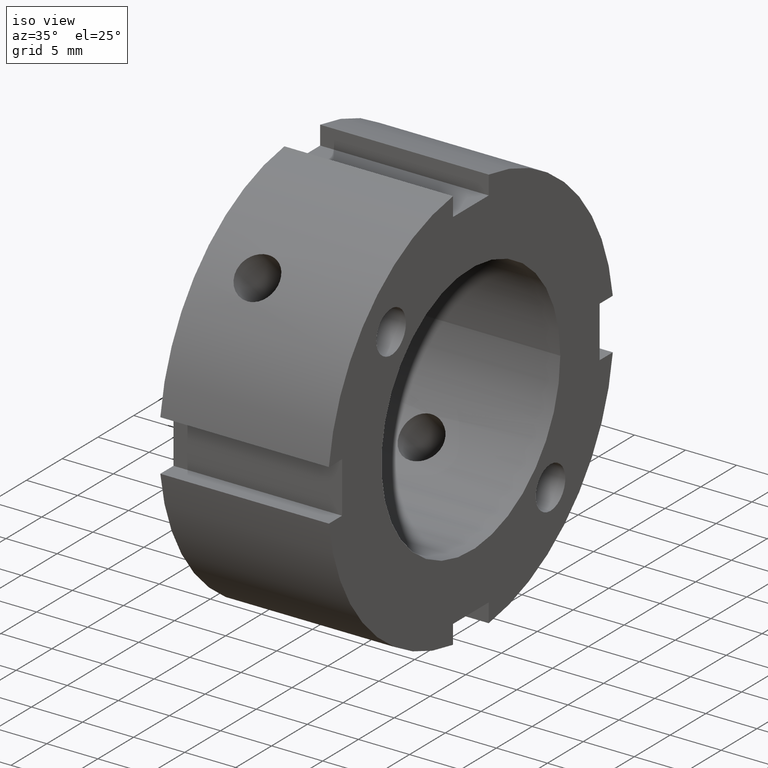
[diagram: clean part render]
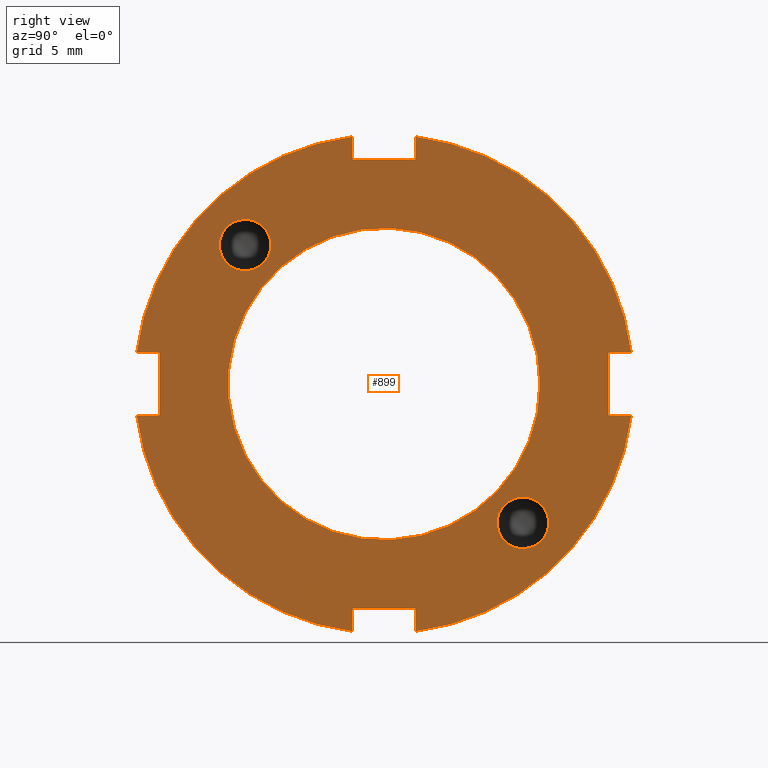
[diagram: tour spotlight — one face highlighted and labeled with its STEP entity id]
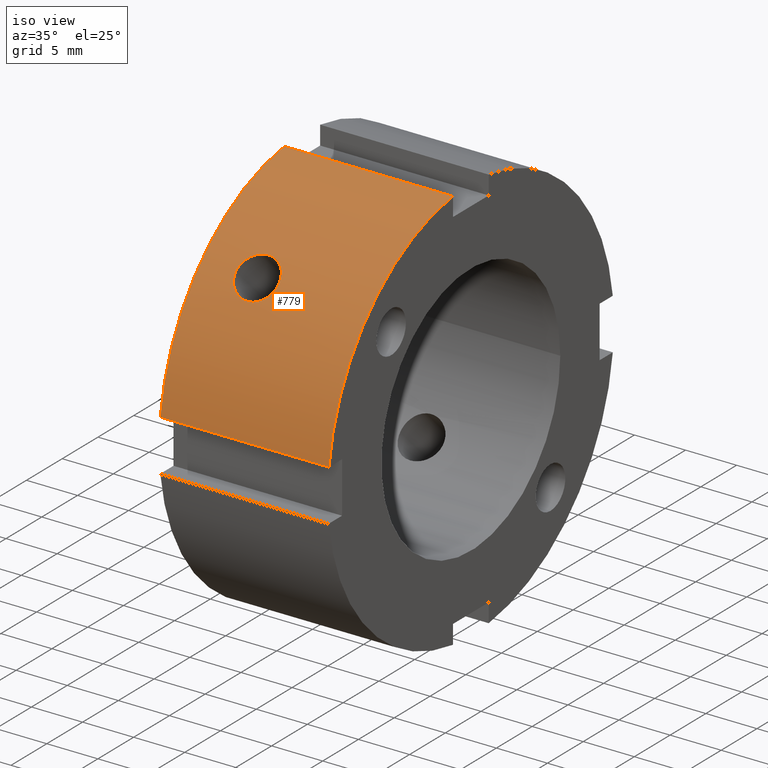
[diagram: tour spotlight — one face highlighted and labeled with its STEP entity id]
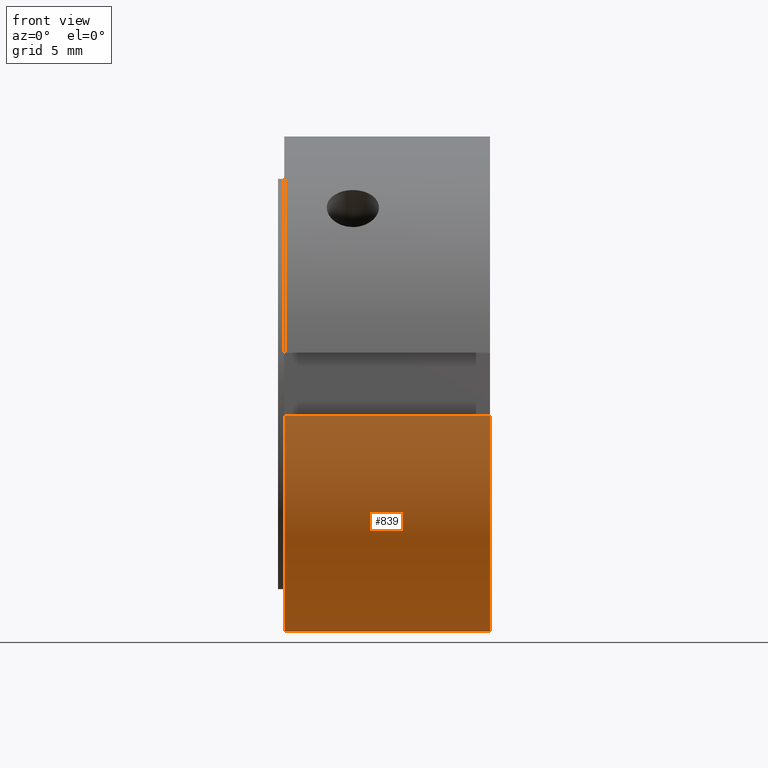
[diagram: tour spotlight — one face highlighted and labeled with its STEP entity id]
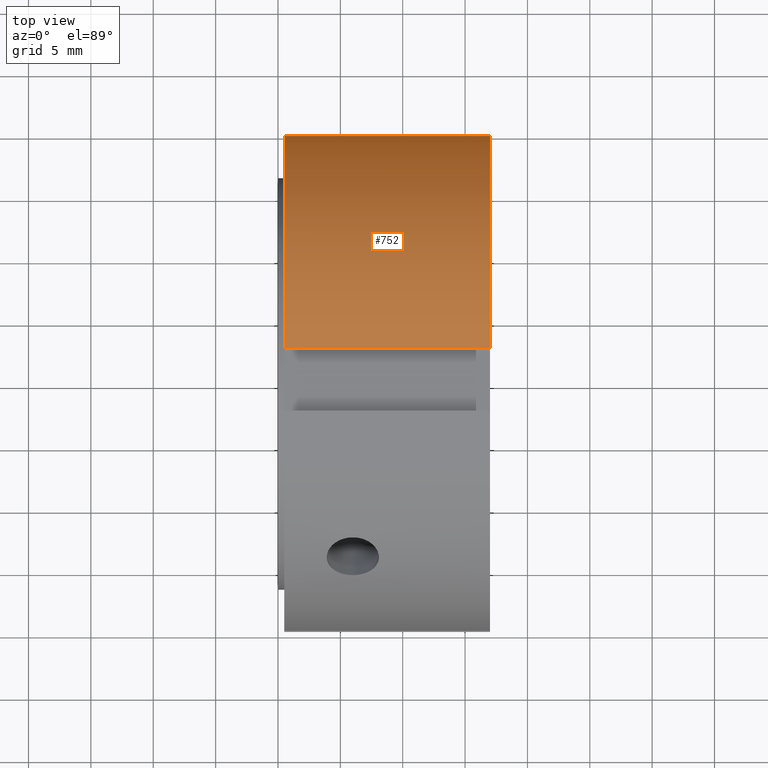
[diagram: tour spotlight — one face highlighted and labeled with its STEP entity id]
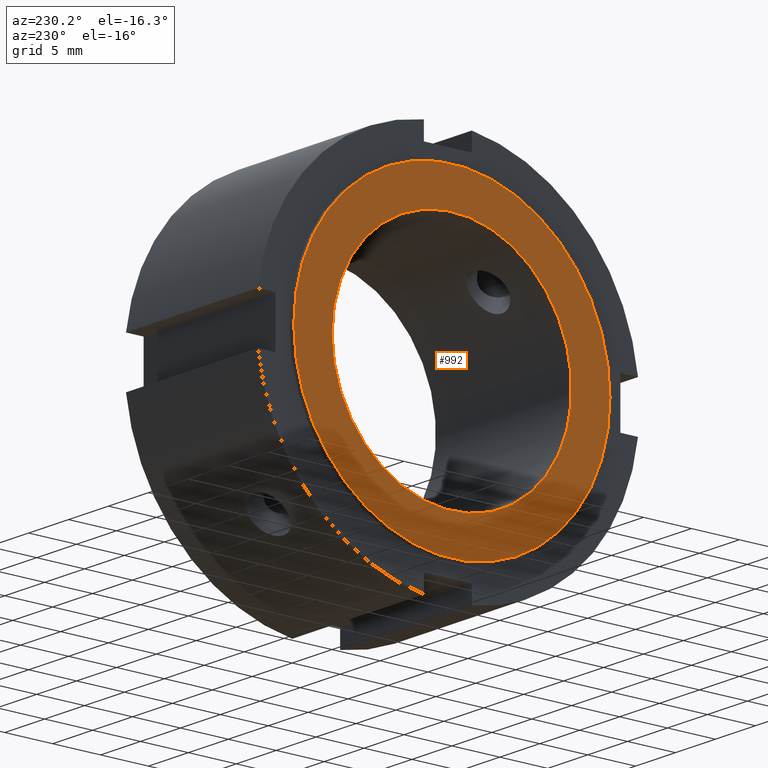
[diagram: tour spotlight — one face highlighted and labeled with its STEP entity id]
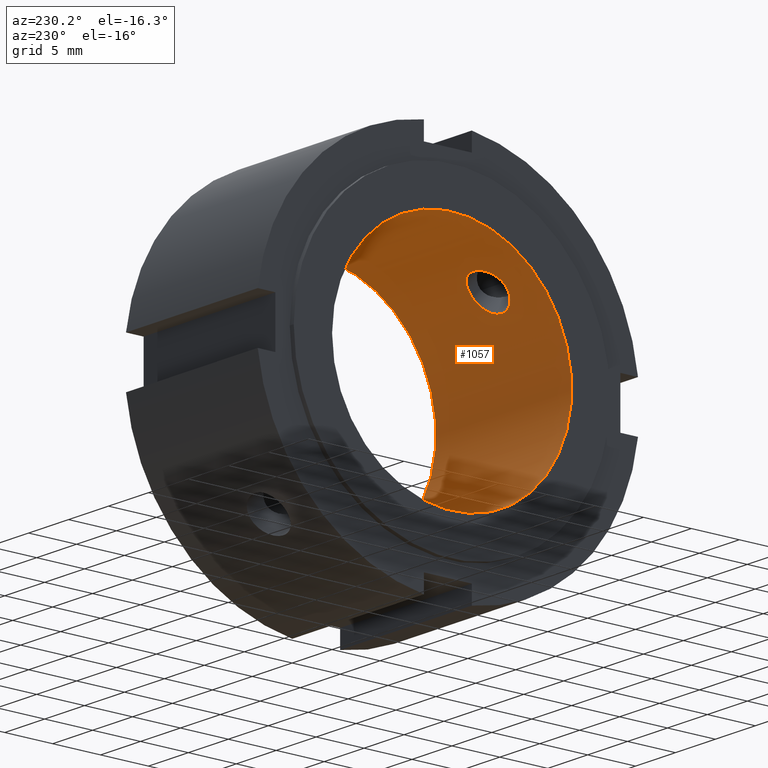
[diagram: tour spotlight — one face highlighted and labeled with its STEP entity id]
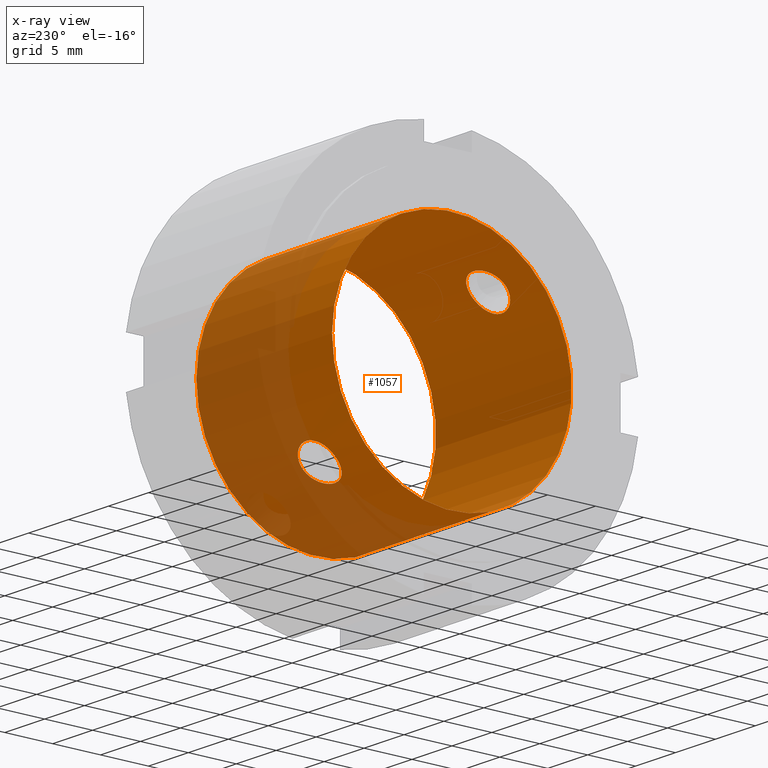
[diagram: x-ray of the same camera — body ghosted, this tour face saturated]
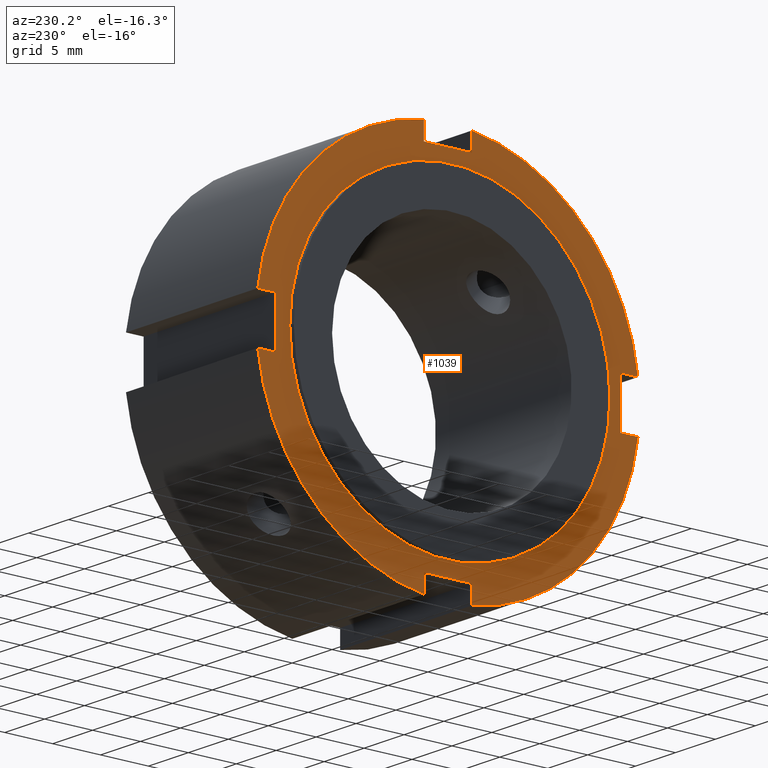
[diagram: tour spotlight — one face highlighted and labeled with its STEP entity id]
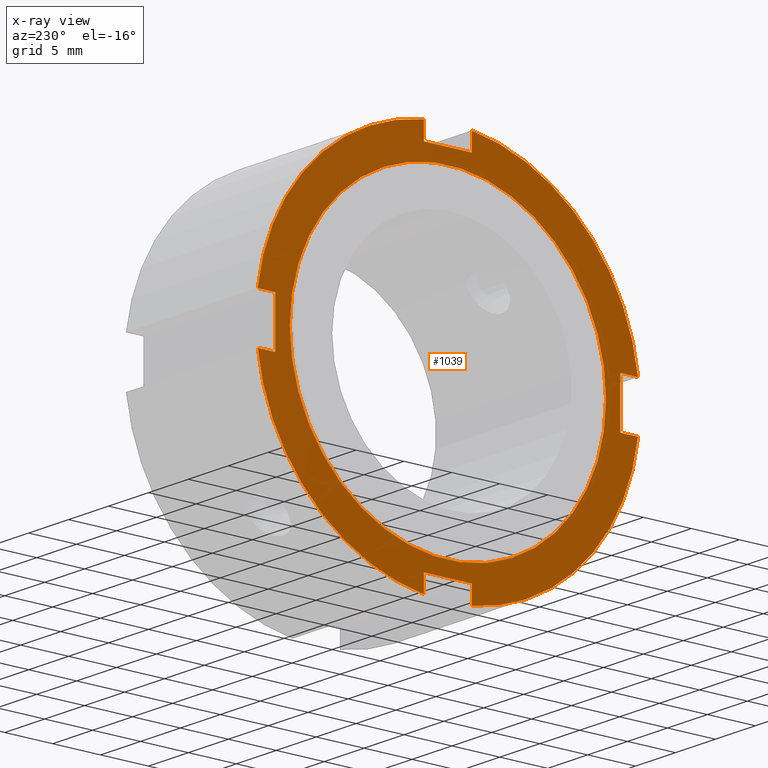
[diagram: x-ray of the same camera — body ghosted, this tour face saturated]
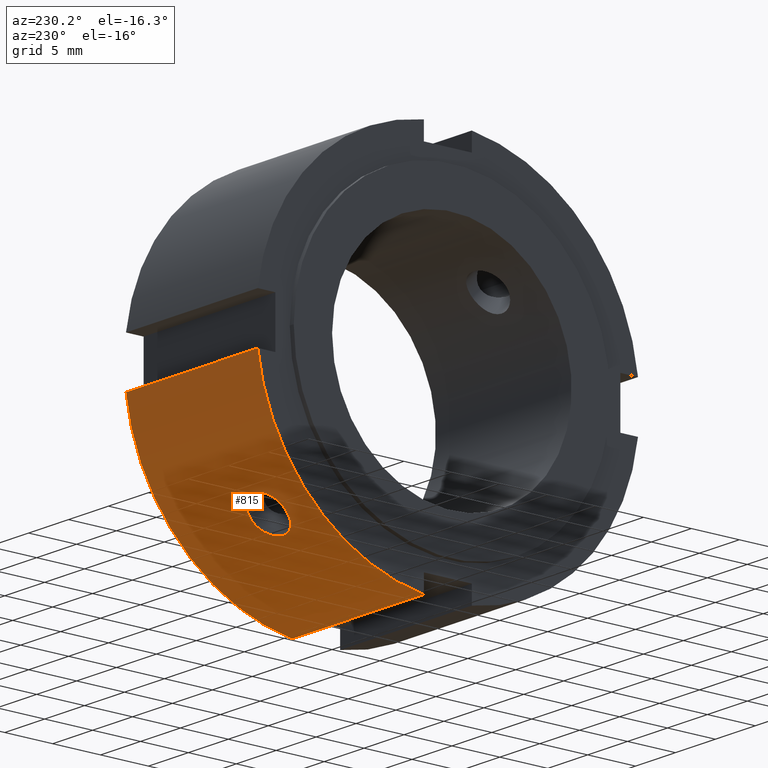
[diagram: tour spotlight — one face highlighted and labeled with its STEP entity id]
A machine part: a face-by-face anatomy tour. The part has 25 B-rep faces; the first image is the clean iso view, then the 8 largest visible faces are spotlighted one at a time (largest first), each with its STEP entity span.

Face 1 — right view, entity #899. In plain terms, the highlighted planar face has unit normal (1, 0, 0).
Definition (entity closure, byte-faithful):
#73=CARTESIAN_POINT('',(16.999999999999996,-13.203931803688121,11.13693180368813));
#74=VERTEX_POINT('',#73);
#75=CARTESIAN_POINT('',(16.999999999999996,-11.136931803688119,11.13693180368813));
#76=DIRECTION('',(-1.0,0.0,0.0));
#77=DIRECTION('',(0.0,-1.0,0.0));
#78=AXIS2_PLACEMENT_3D('',#75,#76,#77);
#79=CIRCLE('',#78,2.067);
#80=EDGE_CURVE('',#74,#74,#79,.T.);
#311=CARTESIAN_POINT('',(16.999999999999996,11.136931803688128,-13.203931803688123));
#312=VERTEX_POINT('',#311);
#313=CARTESIAN_POINT('',(16.999999999999996,11.136931803688128,-11.136931803688121));
#314=DIRECTION('',(-1.0,0.0,0.0));
#315=DIRECTION('',(0.0,0.0,-1.0));
#316=AXIS2_PLACEMENT_3D('',#313,#314,#315);
#317=CIRCLE('',#316,2.067);
#318=EDGE_CURVE('',#312,#312,#317,.T.);
#429=CARTESIAN_POINT('',(16.999999999999996,-2.500000000000003,-18.0));
#430=VERTEX_POINT('',#429);
#437=CARTESIAN_POINT('',(16.999999999999996,-2.500000000000002,-19.843134832984425));
#438=VERTEX_POINT('',#437);
#439=CARTESIAN_POINT('',(16.999999999999996,-2.500000000000003,-19.843134832984425));
#440=DIRECTION('',(0.0,0.0,1.0));
#441=VECTOR('',#440,1.843134832984426);
#442=LINE('',#439,#441);
#443=EDGE_CURVE('',#438,#430,#442,.T.);
#469=CARTESIAN_POINT('',(16.999999999999996,2.499999999999995,-19.843134832984425));
#470=VERTEX_POINT('',#469);
#477=CARTESIAN_POINT('',(16.999999999999996,2.499999999999996,-18.0));
#478=VERTEX_POINT('',#477);
#479=CARTESIAN_POINT('',(16.999999999999996,2.499999999999996,-18.0));
#480=DIRECTION('',(0.0,0.0,-1.0));
#481=VECTOR('',#480,1.843134832984426);
#482=LINE('',#479,#481);
#483=EDGE_CURVE('',#478,#470,#482,.T.);
#506=CARTESIAN_POINT('',(16.999999999999996,-2.500000000000004,-17.999999999999996));
#507=DIRECTION('',(0.0,1.0,0.0));
#508=VECTOR('',#507,5.0);
#509=LINE('',#506,#508);
#510=EDGE_CURVE('',#430,#478,#509,.T.);
#531=CARTESIAN_POINT('',(16.999999999999996,-18.0,2.500000000000002));
#532=VERTEX_POINT('',#531);
#539=CARTESIAN_POINT('',(16.999999999999996,-19.843134832984425,2.500000000000001));
#540=VERTEX_POINT('',#539);
#541=CARTESIAN_POINT('',(16.999999999999996,-19.843134832984425,2.500000000000002));
#542=DIRECTION('',(0.0,1.0,0.0));
#543=VECTOR('',#542,1.843134832984426);
#544=LINE('',#541,#543);
#545=EDGE_CURVE('',#540,#532,#544,.T.);
#571=CARTESIAN_POINT('',(16.999999999999996,-19.843134832984425,-2.499999999999996));
#572=VERTEX_POINT('',#571);
#579=CARTESIAN_POINT('',(16.999999999999996,-18.0,-2.499999999999997));
#580=VERTEX_POINT('',#579);
#581=CARTESIAN_POINT('',(16.999999999999996,-18.0,-2.499999999999998));
#582=DIRECTION('',(0.0,-1.0,0.0));
#583=VECTOR('',#582,1.843134832984426);
#584=LINE('',#581,#583);
#585=EDGE_CURVE('',#580,#572,#584,.T.);
#608=CARTESIAN_POINT('',(16.999999999999996,-18.0,2.500000000000002));
#609=DIRECTION('',(0.0,0.0,-1.0));
#610=VECTOR('',#609,4.999999999999998);
#611=LINE('',#608,#610);
#612=EDGE_CURVE('',#532,#580,#611,.T.);
#633=CARTESIAN_POINT('',(16.999999999999996,2.5,18.0));
#634=VERTEX_POINT('',#633);
#641=CARTESIAN_POINT('',(16.999999999999996,2.5,19.843134832984425));
#642=VERTEX_POINT('',#641);
#643=CARTESIAN_POINT('',(16.999999999999996,2.5,19.843134832984425));
#644=DIRECTION('',(0.0,0.0,-1.0));
#645=VECTOR('',#644,1.843134832984426);
#646=LINE('',#643,#645);
#647=EDGE_CURVE('',#642,#634,#646,.T.);
#673=CARTESIAN_POINT('',(16.999999999999996,-2.499999999999998,19.843134832984425));
#674=VERTEX_POINT('',#673);
#681=CARTESIAN_POINT('',(16.999999999999996,-2.499999999999998,18.0));
#682=VERTEX_POINT('',#681);
#683=CARTESIAN_POINT('',(16.999999999999996,-2.499999999999998,18.0));
#684=DIRECTION('',(0.0,0.0,1.0));
#685=VECTOR('',#684,1.843134832984426);
#686=LINE('',#683,#685);
#687=EDGE_CURVE('',#682,#674,#686,.T.);
#710=CARTESIAN_POINT('',(16.999999999999996,2.5,18.0));
#711=DIRECTION('',(0.0,-1.0,0.0));
#712=VECTOR('',#711,4.999999999999999);
#713=LINE('',#710,#712);
#714=EDGE_CURVE('',#634,#682,#713,.T.);
#726=CARTESIAN_POINT('',(16.999999999999996,19.843134832984425,2.499999999999999));
#727=VERTEX_POINT('',#726);
#728=CARTESIAN_POINT('',(16.999999999999996,0.0,0.0));
#729=DIRECTION('',(1.0,0.0,0.0));
#730=DIRECTION('',(0.0,1.0,0.0));
#731=AXIS2_PLACEMENT_3D('',#728,#729,#730);
#732=CIRCLE('',#731,19.999999999999996);
#733=EDGE_CURVE('',#727,#642,#732,.T.);
#759=CARTESIAN_POINT('',(16.999999999999996,0.0,0.0));
#760=DIRECTION('',(1.0,0.0,0.0));
#761=DIRECTION('',(0.0,1.0,0.0));
#762=AXIS2_PLACEMENT_3D('',#759,#760,#761);
#763=CIRCLE('',#762,19.999999999999996);
#764=EDGE_CURVE('',#674,#540,#763,.T.);
#795=CARTESIAN_POINT('',(16.999999999999996,19.843134832984425,-2.499999999999999));
#796=VERTEX_POINT('',#795);
#803=CARTESIAN_POINT('',(16.999999999999996,0.0,0.0));
#804=DIRECTION('',(1.0,0.0,0.0));
#805=DIRECTION('',(0.0,1.0,0.0));
#806=AXIS2_PLACEMENT_3D('',#803,#804,#805);
#807=CIRCLE('',#806,19.999999999999996);
#808=EDGE_CURVE('',#470,#796,#807,.T.);
#822=CARTESIAN_POINT('',(16.999999999999996,0.0,0.0));
#823=DIRECTION('',(1.0,0.0,0.0));
#824=DIRECTION('',(0.0,1.0,0.0));
#825=AXIS2_PLACEMENT_3D('',#822,#823,#824);
#826=CIRCLE('',#825,19.999999999999996);
#827=EDGE_CURVE('',#572,#438,#826,.T.);
#840=CARTESIAN_POINT('',(16.999999999999996,16.25,0.0));
#841=DIRECTION('',(1.0,0.0,0.0));
#842=DIRECTION('',(0.0,0.0,-1.0));
#843=AXIS2_PLACEMENT_3D('',#840,#841,#842);
#844=PLANE('',#843);
#845=ORIENTED_EDGE('',*,*,#443,.T.);
#846=ORIENTED_EDGE('',*,*,#510,.T.);
#847=ORIENTED_EDGE('',*,*,#483,.T.);
#848=ORIENTED_EDGE('',*,*,#808,.T.);
#849=CARTESIAN_POINT('',(16.999999999999996,18.0,-2.5));
#850=VERTEX_POINT('',#849);
#851=CARTESIAN_POINT('',(16.999999999999996,19.843134832984425,-2.499999999999999));
#852=DIRECTION('',(0.0,-1.0,0.0));
#853=VECTOR('',#852,1.843134832984426);
#854=LINE('',#851,#853);
#855=EDGE_CURVE('',#796,#850,#854,.T.);
#856=ORIENTED_EDGE('',*,*,#855,.T.);
#857=CARTESIAN_POINT('',(16.999999999999996,18.0,2.5));
#858=VERTEX_POINT('',#857);
#859=CARTESIAN_POINT('',(16.999999999999996,18.0,-2.499999999999999));
#860=DIRECTION('',(0.0,0.0,1.0));
#861=VECTOR('',#860,4.999999999999998);
#862=LINE('',#859,#861);
#863=EDGE_CURVE('',#850,#858,#862,.T.);
#864=ORIENTED_EDGE('',*,*,#863,.T.);
#865=CARTESIAN_POINT('',(16.999999999999996,18.0,2.5));
#866=DIRECTION('',(0.0,1.0,0.0));
#867=VECTOR('',#866,1.843134832984426);
#868=LINE('',#865,#867);
#869=EDGE_CURVE('',#858,#727,#868,.T.);
#870=ORIENTED_EDGE('',*,*,#869,.T.);
#871=ORIENTED_EDGE('',*,*,#733,.T.);
#872=ORIENTED_EDGE('',*,*,#647,.T.);
#873=ORIENTED_EDGE('',*,*,#714,.T.);
#874=ORIENTED_EDGE('',*,*,#687,.T.);
#875=ORIENTED_EDGE('',*,*,#764,.T.);
#876=ORIENTED_EDGE('',*,*,#545,.T.);
#877=ORIENTED_EDGE('',*,*,#612,.T.);
#878=ORIENTED_EDGE('',*,*,#585,.T.);
#879=ORIENTED_EDGE('',*,*,#827,.T.);
#880=EDGE_LOOP('',(#845,#846,#847,#848,#856,#864,#870,#871,#872,#873,#874,#875,#876,#877,#878,#879));
#881=FACE_OUTER_BOUND('',#880,.T.);
#882=ORIENTED_EDGE('',*,*,#80,.T.);
#883=EDGE_LOOP('',(#882));
#884=FACE_BOUND('',#883,.T.);
#885=ORIENTED_EDGE('',*,*,#318,.T.);
#886=EDGE_LOOP('',(#885));
#887=FACE_BOUND('',#886,.T.);
#888=CARTESIAN_POINT('',(16.999999999999996,12.5,0.0));
#889=VERTEX_POINT('',#888);
#890=CARTESIAN_POINT('',(16.999999999999996,0.0,0.0));
#891=DIRECTION('',(1.0,0.0,0.0));
#892=DIRECTION('',(0.0,1.0,0.0));
#893=AXIS2_PLACEMENT_3D('',#890,#891,#892);
#894=CIRCLE('',#893,12.5);
#895=EDGE_CURVE('',#889,#889,#894,.T.);
#896=ORIENTED_EDGE('',*,*,#895,.F.);
#897=EDGE_LOOP('',(#896));
#898=FACE_BOUND('',#897,.T.);
#899=ADVANCED_FACE('',(#881,#884,#887,#898),#844,.T.);

Face 2 — iso view, entity #779. In plain terms, the highlighted cylindrical surface (partial cylindrical patch) has radius 20 mm, axis along (1, 0, 0).
Definition (entity closure, byte-faithful):
#155=CARTESIAN_POINT('',(5.999999999999996,-15.548885275705118,12.57903679472162));
#156=VERTEX_POINT('',#155);
#157=CARTESIAN_POINT('',(5.999999999999996,-15.548885275705116,12.579036794721624));
#158=CARTESIAN_POINT('',(5.736109916406895,-15.548885275705116,12.579036794721624));
#159=CARTESIAN_POINT('',(5.45476406221831,-15.515661773209469,12.620453155101028));
#160=CARTESIAN_POINT('',(4.93742553178847,-15.378850830171311,12.786811376909208));
#161=CARTESIAN_POINT('',(4.701416181922334,-15.275055123636342,12.911529971040007));
#162=CARTESIAN_POINT('',(4.328736108781461,-15.031150372504074,13.194674433769757));
#163=CARTESIAN_POINT('',(4.167151494345116,-14.874702546907892,13.371994709189609));
#164=CARTESIAN_POINT('',(3.952778074131436,-14.52360405671482,13.752524988666654));
#165=CARTESIAN_POINT('',(3.899999999999996,-14.328733318571576,13.955537928890326));
#166=CARTESIAN_POINT('',(3.899999999999996,-13.955537928890319,14.32873331857158));
#167=CARTESIAN_POINT('',(3.952778074131437,-13.752524988666647,14.523604056714829));
#168=CARTESIAN_POINT('',(4.167151494345119,-13.371994709189599,14.874702546907901));
#169=CARTESIAN_POINT('',(4.32873610878146,-13.194674433769752,15.031150372504083));
#170=CARTESIAN_POINT('',(4.701416181922333,-12.91152997104,15.275055123636349));
#171=CARTESIAN_POINT('',(4.937425531788472,-12.786811376909203,15.378850830171316));
#172=CARTESIAN_POINT('',(5.454764062218312,-12.620453155101021,15.515661773209475));
#173=CARTESIAN_POINT('',(5.736109916406895,-12.579036794721617,15.548885275705125));
#174=CARTESIAN_POINT('',(6.263890083593098,-12.579036794721617,15.548885275705125));
#175=CARTESIAN_POINT('',(6.545235937781681,-12.620453155101021,15.515661773209475));
#176=CARTESIAN_POINT('',(7.06257446821152,-12.786811376909203,15.378850830171316));
#177=CARTESIAN_POINT('',(7.298583818077658,-12.91152997104,15.275055123636349));
#178=CARTESIAN_POINT('',(7.671263891218531,-13.194674433769752,15.031150372504083));
#179=CARTESIAN_POINT('',(7.832848505654874,-13.3719947091896,14.874702546907898));
#180=CARTESIAN_POINT('',(8.047221925868556,-13.752524988666648,14.523604056714827));
#181=CARTESIAN_POINT('',(8.099999999999996,-13.955537928890319,14.32873331857158));
#182=CARTESIAN_POINT('',(8.099999999999996,-14.328733318571574,13.955537928890326));
#183=CARTESIAN_POINT('',(8.047221925868556,-14.52360405671482,13.752524988666654));
#184=CARTESIAN_POINT('',(7.832848505654878,-14.874702546907891,13.371994709189611));
#185=CARTESIAN_POINT('',(7.671263891218531,-15.031150372504069,13.194674433769764));
#186=CARTESIAN_POINT('',(7.29858381807766,-15.275055123636339,12.911529971040014));
#187=CARTESIAN_POINT('',(7.062574468211525,-15.378850830171309,12.786811376909206));
#188=CARTESIAN_POINT('',(6.545235937781685,-15.515661773209468,12.620453155101025));
#189=CARTESIAN_POINT('',(6.263890083593098,-15.548885275705118,12.579036794721624));
#190=CARTESIAN_POINT('',(5.999999999999996,-15.548885275705118,12.579036794721624));
#191=B_SPLINE_CURVE_WITH_KNOTS('',3,(#157,#158,#159,#160,#161,#162,#163,#164,#165,#166,#167,#168,#169,#170,#171,#172,#173,#174,#175,#176,#177,#178,#179,#180,#181,#182,#183,#184,#185,#186,#187,#188,#189,#190),.UNSPECIFIED.,.T.,.U.,(4,2,2,2,2,2,2,2,2,2,2,2,2,2,2,2,4),(0.0,0.07916702507793,0.158334050155861,0.237500747381212,0.316667444606564,0.395834141831916,0.475000839057268,0.554167864135198,0.633334889213129,0.712501914291059,0.791668939368989,0.870835636594341,0.950002333819693,1.029169031045044,1.108335728270395,1.187502753348326,1.266669778426257),.UNSPECIFIED.);
#192=EDGE_CURVE('',#156,#156,#191,.T.);
#523=CARTESIAN_POINT('',(0.499999999999998,-19.843134832984425,2.500000000000001));
#524=VERTEX_POINT('',#523);
#539=CARTESIAN_POINT('',(16.999999999999996,-19.843134832984425,2.500000000000001));
#540=VERTEX_POINT('',#539);
#547=CARTESIAN_POINT('',(0.5,-19.843134832984425,2.500000000000002));
#548=DIRECTION('',(1.0,0.0,0.0));
#549=VECTOR('',#548,16.5);
#550=LINE('',#547,#549);
#551=EDGE_CURVE('',#524,#540,#550,.T.);
#663=CARTESIAN_POINT('',(0.499999999999998,-2.499999999999998,19.843134832984425));
#664=VERTEX_POINT('',#663);
#673=CARTESIAN_POINT('',(16.999999999999996,-2.499999999999998,19.843134832984425));
#674=VERTEX_POINT('',#673);
#675=CARTESIAN_POINT('',(17.0,-2.499999999999998,19.843134832984425));
#676=DIRECTION('',(-1.0,0.0,0.0));
#677=VECTOR('',#676,16.5);
#678=LINE('',#675,#677);
#679=EDGE_CURVE('',#674,#664,#678,.T.);
#753=CARTESIAN_POINT('',(8.749999999999996,0.0,0.0));
#754=DIRECTION('',(1.0,0.0,0.0));
#755=DIRECTION('',(0.0,1.0,0.0));
#756=AXIS2_PLACEMENT_3D('',#753,#754,#755);
#757=CYLINDRICAL_SURFACE('',#756,19.999999999999996);
#758=ORIENTED_EDGE('',*,*,#551,.T.);
#759=CARTESIAN_POINT('',(16.999999999999996,0.0,0.0));
#760=DIRECTION('',(1.0,0.0,0.0));
#761=DIRECTION('',(0.0,1.0,0.0));
#762=AXIS2_PLACEMENT_3D('',#759,#760,#761);
#763=CIRCLE('',#762,19.999999999999996);
#764=EDGE_CURVE('',#674,#540,#763,.T.);
#765=ORIENTED_EDGE('',*,*,#764,.F.);
#766=ORIENTED_EDGE('',*,*,#679,.T.);
#767=CARTESIAN_POINT('',(0.499999999999998,0.0,0.0));
#768=DIRECTION('',(1.0,0.0,0.0));
#769=DIRECTION('',(0.0,1.0,0.0));
#770=AXIS2_PLACEMENT_3D('',#767,#768,#769);
#771=CIRCLE('',#770,19.999999999999996);
#772=EDGE_CURVE('',#664,#524,#771,.T.);
#773=ORIENTED_EDGE('',*,*,#772,.T.);
#774=EDGE_LOOP('',(#758,#765,#766,#773));
#775=FACE_OUTER_BOUND('',#774,.T.);
#776=ORIENTED_EDGE('',*,*,#192,.T.);
#777=EDGE_LOOP('',(#776));
#778=FACE_BOUND('',#777,.T.);
#779=ADVANCED_FACE('',(#775,#778),#757,.T.);

Face 3 — front view, entity #839. In plain terms, the highlighted cylindrical surface (partial cylindrical patch) has radius 20 mm, axis along (1, 0, 0).
Definition (entity closure, byte-faithful):
#421=CARTESIAN_POINT('',(0.499999999999998,-2.500000000000002,-19.843134832984425));
#422=VERTEX_POINT('',#421);
#437=CARTESIAN_POINT('',(16.999999999999996,-2.500000000000002,-19.843134832984425));
#438=VERTEX_POINT('',#437);
#445=CARTESIAN_POINT('',(0.5,-2.500000000000003,-19.843134832984425));
#446=DIRECTION('',(1.0,0.0,0.0));
#447=VECTOR('',#446,16.5);
#448=LINE('',#445,#447);
#449=EDGE_CURVE('',#422,#438,#448,.T.);
#561=CARTESIAN_POINT('',(0.499999999999998,-19.843134832984425,-2.499999999999996));
#562=VERTEX_POINT('',#561);
#571=CARTESIAN_POINT('',(16.999999999999996,-19.843134832984425,-2.499999999999996));
#572=VERTEX_POINT('',#571);
#573=CARTESIAN_POINT('',(17.0,-19.843134832984429,-2.499999999999997));
#574=DIRECTION('',(-1.0,0.0,0.0));
#575=VECTOR('',#574,16.5);
#576=LINE('',#573,#575);
#577=EDGE_CURVE('',#572,#562,#576,.T.);
#816=CARTESIAN_POINT('',(8.749999999999996,0.0,0.0));
#817=DIRECTION('',(1.0,0.0,0.0));
#818=DIRECTION('',(0.0,1.0,0.0));
#819=AXIS2_PLACEMENT_3D('',#816,#817,#818);
#820=CYLINDRICAL_SURFACE('',#819,19.999999999999996);
#821=ORIENTED_EDGE('',*,*,#449,.T.);
#822=CARTESIAN_POINT('',(16.999999999999996,0.0,0.0));
#823=DIRECTION('',(1.0,0.0,0.0));
#824=DIRECTION('',(0.0,1.0,0.0));
#825=AXIS2_PLACEMENT_3D('',#822,#823,#824);
#826=CIRCLE('',#825,19.999999999999996);
#827=EDGE_CURVE('',#572,#438,#826,.T.);
#828=ORIENTED_EDGE('',*,*,#827,.F.);
#829=ORIENTED_EDGE('',*,*,#577,.T.);
#830=CARTESIAN_POINT('',(0.499999999999998,0.0,0.0));
#831=DIRECTION('',(1.0,0.0,0.0));
#832=DIRECTION('',(0.0,1.0,0.0));
#833=AXIS2_PLACEMENT_3D('',#830,#831,#832);
#834=CIRCLE('',#833,19.999999999999996);
#835=EDGE_CURVE('',#562,#422,#834,.T.);
#836=ORIENTED_EDGE('',*,*,#835,.T.);
#837=EDGE_LOOP('',(#821,#828,#829,#836));
#838=FACE_OUTER_BOUND('',#837,.T.);
#839=ADVANCED_FACE('',(#838),#820,.T.);

Face 4 — top view, entity #752. In plain terms, the highlighted cylindrical surface (partial cylindrical patch) has radius 20 mm, axis along (1, 0, 0).
Definition (entity closure, byte-faithful):
#625=CARTESIAN_POINT('',(0.499999999999998,2.5,19.843134832984425));
#626=VERTEX_POINT('',#625);
#641=CARTESIAN_POINT('',(16.999999999999996,2.5,19.843134832984425));
#642=VERTEX_POINT('',#641);
#649=CARTESIAN_POINT('',(0.5,2.5,19.843134832984425));
#650=DIRECTION('',(1.0,0.0,0.0));
#651=VECTOR('',#650,16.5);
#652=LINE('',#649,#651);
#653=EDGE_CURVE('',#626,#642,#652,.T.);
#720=CARTESIAN_POINT('',(8.749999999999996,0.0,0.0));
#721=DIRECTION('',(1.0,0.0,0.0));
#722=DIRECTION('',(0.0,1.0,0.0));
#723=AXIS2_PLACEMENT_3D('',#720,#721,#722);
#724=CYLINDRICAL_SURFACE('',#723,19.999999999999996);
#725=ORIENTED_EDGE('',*,*,#653,.T.);
#726=CARTESIAN_POINT('',(16.999999999999996,19.843134832984425,2.499999999999999));
#727=VERTEX_POINT('',#726);
#728=CARTESIAN_POINT('',(16.999999999999996,0.0,0.0));
#729=DIRECTION('',(1.0,0.0,0.0));
#730=DIRECTION('',(0.0,1.0,0.0));
#731=AXIS2_PLACEMENT_3D('',#728,#729,#730);
#732=CIRCLE('',#731,19.999999999999996);
#733=EDGE_CURVE('',#727,#642,#732,.T.);
#734=ORIENTED_EDGE('',*,*,#733,.F.);
#735=CARTESIAN_POINT('',(0.499999999999998,19.843134832984425,2.499999999999999));
#736=VERTEX_POINT('',#735);
#737=CARTESIAN_POINT('',(17.0,19.843134832984425,2.499999999999999));
#738=DIRECTION('',(-1.0,0.0,0.0));
#739=VECTOR('',#738,16.5);
#740=LINE('',#737,#739);
#741=EDGE_CURVE('',#727,#736,#740,.T.);
#742=ORIENTED_EDGE('',*,*,#741,.T.);
#743=CARTESIAN_POINT('',(0.499999999999998,0.0,0.0));
#744=DIRECTION('',(1.0,0.0,0.0));
#745=DIRECTION('',(0.0,1.0,0.0));
#746=AXIS2_PLACEMENT_3D('',#743,#744,#745);
#747=CIRCLE('',#746,19.999999999999996);
#748=EDGE_CURVE('',#736,#626,#747,.T.);
#749=ORIENTED_EDGE('',*,*,#748,.T.);
#750=EDGE_LOOP('',(#725,#734,#742,#749));
#751=FACE_OUTER_BOUND('',#750,.T.);
#752=ADVANCED_FACE('',(#751),#724,.T.);

Face 5 — auxiliary view, entity #992. In plain terms, the highlighted planar face has unit normal (-1, 0, 0).
Definition (entity closure, byte-faithful):
#965=CARTESIAN_POINT('',(-3.687130E-015,14.5,0.0));
#966=DIRECTION('',(-1.0,0.0,0.0));
#967=DIRECTION('',(0.0,0.0,1.0));
#968=AXIS2_PLACEMENT_3D('',#965,#966,#967);
#969=PLANE('',#968);
#970=CARTESIAN_POINT('',(-4.440892E-015,16.5,0.0));
#971=VERTEX_POINT('',#970);
#972=CARTESIAN_POINT('',(-4.440892E-015,0.0,0.0));
#973=DIRECTION('',(1.0,0.0,0.0));
#974=DIRECTION('',(0.0,1.0,0.0));
#975=AXIS2_PLACEMENT_3D('',#972,#973,#974);
#976=CIRCLE('',#975,16.5);
#977=EDGE_CURVE('',#971,#971,#976,.T.);
#978=ORIENTED_EDGE('',*,*,#977,.F.);
#979=EDGE_LOOP('',(#978));
#980=FACE_OUTER_BOUND('',#979,.T.);
#981=CARTESIAN_POINT('',(-2.933369E-015,12.5,0.0));
#982=VERTEX_POINT('',#981);
#983=CARTESIAN_POINT('',(-2.931683E-015,0.0,0.0));
#984=DIRECTION('',(1.0,0.0,0.0));
#985=DIRECTION('',(0.0,1.0,0.0));
#986=AXIS2_PLACEMENT_3D('',#983,#984,#985);
#987=CIRCLE('',#986,12.5);
#988=EDGE_CURVE('',#982,#982,#987,.T.);
#989=ORIENTED_EDGE('',*,*,#988,.T.);
#990=EDGE_LOOP('',(#989));
#991=FACE_BOUND('',#990,.T.);
#992=ADVANCED_FACE('',(#980,#991),#969,.T.);

Face 6 — auxiliary view, entity #1057. An x-ray twin of the same camera follows (body ghosted, this face saturated) — the face is partly hidden behind the body. In plain terms, the highlighted cylindrical surface (bore or boss wall) has radius 12.5 mm, axis along (1, 0, 0).
Definition (entity closure, byte-faithful):
#199=CARTESIAN_POINT('',(5.999999999999996,-10.198132604808535,7.228284123825035));
#200=VERTEX_POINT('',#199);
#201=CARTESIAN_POINT('',(5.999999999999996,-10.198132604808535,7.228284123825038));
#202=CARTESIAN_POINT('',(6.264223494722858,-10.198132604808535,7.228284123825038));
#203=CARTESIAN_POINT('',(6.545708881319178,-10.167352052052243,7.272326662017709));
#204=CARTESIAN_POINT('',(7.06295267849816,-10.039524336396386,7.447800600406278));
#205=CARTESIAN_POINT('',(7.298755034326162,-9.942138120032238,7.578855103776636));
#206=CARTESIAN_POINT('',(7.671088311067131,-9.710357777380862,7.873633530815152));
#207=CARTESIAN_POINT('',(7.832624321187875,-9.560348644030132,8.057102403893207));
#208=CARTESIAN_POINT('',(8.047093901954037,-9.218180385001549,8.446438049773532));
#209=CARTESIAN_POINT('',(8.099999999999996,-9.025663835764046,8.652005693899646));
#210=CARTESIAN_POINT('',(8.099999999999996,-8.652005693899641,9.02566383576405));
#211=CARTESIAN_POINT('',(8.047093901954035,-8.446438049773525,9.218180385001553));
#212=CARTESIAN_POINT('',(7.832624321187872,-8.057102403893202,9.560348644030137));
#213=CARTESIAN_POINT('',(7.671088311067131,-7.873633530815143,9.710357777380867));
#214=CARTESIAN_POINT('',(7.298755034326162,-7.578855103776627,9.942138120032242));
#215=CARTESIAN_POINT('',(7.062952678498159,-7.447800600406273,10.03952433639639));
#216=CARTESIAN_POINT('',(6.545708881319178,-7.272326662017704,10.167352052052248));
#217=CARTESIAN_POINT('',(6.264223494722858,-7.228284123825032,10.198132604808539));
#218=CARTESIAN_POINT('',(5.735776505277135,-7.228284123825032,10.198132604808539));
#219=CARTESIAN_POINT('',(5.454291118680819,-7.272326662017701,10.167352052052244));
#220=CARTESIAN_POINT('',(4.937047321501836,-7.447800600406271,10.039524336396388));
#221=CARTESIAN_POINT('',(4.701244965673831,-7.578855103776627,9.942138120032242));
#222=CARTESIAN_POINT('',(4.328911688932861,-7.873633530815144,9.710357777380867));
#223=CARTESIAN_POINT('',(4.167375678812121,-8.057102403893202,9.560348644030137));
#224=CARTESIAN_POINT('',(3.952906098045958,-8.446438049773525,9.218180385001555));
#225=CARTESIAN_POINT('',(3.899999999999996,-8.652005693899641,9.025663835764052));
#226=CARTESIAN_POINT('',(3.899999999999996,-9.025663835764044,8.652005693899648));
#227=CARTESIAN_POINT('',(3.952906098045955,-9.218180385001546,8.446438049773535));
#228=CARTESIAN_POINT('',(4.167375678812112,-9.560348644030126,8.057102403893214));
#229=CARTESIAN_POINT('',(4.328911688932863,-9.710357777380857,7.873633530815161));
#230=CARTESIAN_POINT('',(4.70124496567383,-9.942138120032233,7.578855103776645));
#231=CARTESIAN_POINT('',(4.93704732150183,-10.039524336396383,7.447800600406279));
#232=CARTESIAN_POINT('',(5.454291118680812,-10.167352052052243,7.272326662017709));
#233=CARTESIAN_POINT('',(5.735776505277133,-10.198132604808535,7.228284123825039));
#234=CARTESIAN_POINT('',(5.999999999999996,-10.198132604808535,7.228284123825039));
#235=B_SPLINE_CURVE_WITH_KNOTS('',3,(#201,#202,#203,#204,#205,#206,#207,#208,#209,#210,#211,#212,#213,#214,#215,#216,#217,#218,#219,#220,#221,#222,#223,#224,#225,#226,#227,#228,#229,#230,#231,#232,#233,#234),.UNSPECIFIED.,.T.,.U.,(4,2,2,2,2,2,2,2,2,2,2,2,2,2,2,2,4),(0.0,0.079267048416859,0.158534096833717,0.237798958621083,0.317063820408449,0.396328682195814,0.47559354398318,0.554860592400039,0.634127640816897,0.713394689233756,0.792661737650615,0.87192659943798,0.951191461225346,1.030456323012711,1.109721184800076,1.188988233216935,1.268255281633794),.UNSPECIFIED.);
#236=EDGE_CURVE('',#200,#200,#235,.T.);
#372=CARTESIAN_POINT('',(5.999999999999996,7.228284123825032,-10.198132604808537));
#373=VERTEX_POINT('',#372);
#374=CARTESIAN_POINT('',(5.999999999999996,7.228284123825034,-10.198132604808537));
#375=CARTESIAN_POINT('',(5.735776505277135,7.228284123825034,-10.198132604808537));
#376=CARTESIAN_POINT('',(5.454291118680819,7.272326662017701,-10.167352052052244));
#377=CARTESIAN_POINT('',(4.937047321501836,7.447800600406271,-10.039524336396388));
#378=CARTESIAN_POINT('',(4.701244965673831,7.578855103776627,-9.942138120032242));
#379=CARTESIAN_POINT('',(4.328911688932861,7.873633530815144,-9.710357777380867));
#380=CARTESIAN_POINT('',(4.167375678812121,8.057102403893202,-9.560348644030137));
#381=CARTESIAN_POINT('',(3.952906098045958,8.446438049773525,-9.218180385001553));
#382=CARTESIAN_POINT('',(3.899999999999996,8.652005693899641,-9.02566383576405));
#383=CARTESIAN_POINT('',(3.899999999999997,9.025663835764044,-8.65200569389965));
#384=CARTESIAN_POINT('',(3.952906098045955,9.218180385001546,-8.446438049773535));
#385=CARTESIAN_POINT('',(4.167375678812113,9.560348644030126,-8.057102403893214));
#386=CARTESIAN_POINT('',(4.328911688932863,9.710357777380857,-7.873633530815162));
#387=CARTESIAN_POINT('',(4.70124496567383,9.942138120032233,-7.578855103776644));
#388=CARTESIAN_POINT('',(4.937047321501831,10.039524336396383,-7.447800600406279));
#389=CARTESIAN_POINT('',(5.454291118680813,10.167352052052243,-7.272326662017709));
#390=CARTESIAN_POINT('',(5.735776505277134,10.198132604808535,-7.228284123825041));
#391=CARTESIAN_POINT('',(6.264223494722858,10.198132604808535,-7.228284123825041));
#392=CARTESIAN_POINT('',(6.545708881319178,10.167352052052243,-7.272326662017709));
#393=CARTESIAN_POINT('',(7.06295267849816,10.039524336396386,-7.447800600406278));
#394=CARTESIAN_POINT('',(7.298755034326162,9.942138120032238,-7.578855103776636));
#395=CARTESIAN_POINT('',(7.671088311067131,9.710357777380862,-7.873633530815152));
#396=CARTESIAN_POINT('',(7.832624321187875,9.560348644030132,-8.057102403893207));
#397=CARTESIAN_POINT('',(8.047093901954037,9.218180385001549,-8.446438049773532));
#398=CARTESIAN_POINT('',(8.099999999999996,9.025663835764046,-8.652005693899646));
#399=CARTESIAN_POINT('',(8.099999999999996,8.652005693899643,-9.02566383576405));
#400=CARTESIAN_POINT('',(8.047093901954035,8.446438049773528,-9.218180385001553));
#401=CARTESIAN_POINT('',(7.832624321187875,8.057102403893206,-9.560348644030134));
#402=CARTESIAN_POINT('',(7.671088311067131,7.873633530815147,-9.71035777738086));
#403=CARTESIAN_POINT('',(7.298755034326163,7.578855103776631,-9.942138120032237));
#404=CARTESIAN_POINT('',(7.06295267849816,7.447800600406275,-10.039524336396388));
#405=CARTESIAN_POINT('',(6.545708881319178,7.272326662017704,-10.167352052052248));
#406=CARTESIAN_POINT('',(6.264223494722858,7.228284123825032,-10.198132604808537));
#407=CARTESIAN_POINT('',(5.999999999999996,7.228284123825032,-10.198132604808537));
#408=B_SPLINE_CURVE_WITH_KNOTS('',3,(#374,#375,#376,#377,#378,#379,#380,#381,#382,#383,#384,#385,#386,#387,#388,#389,#390,#391,#392,#393,#394,#395,#396,#397,#398,#399,#400,#401,#402,#403,#404,#405,#406,#407),.UNSPECIFIED.,.T.,.U.,(4,2,2,2,2,2,2,2,2,2,2,2,2,2,2,2,4),(0.0,0.079267048416859,0.158534096833717,0.237798958621083,0.317063820408449,0.396328682195814,0.475593543983179,0.554860592400038,0.634127640816897,0.713394689233755,0.792661737650614,0.87192659943798,0.951191461225345,1.030456323012711,1.109721184800076,1.188988233216935,1.268255281633794),.UNSPECIFIED.);
#409=EDGE_CURVE('',#373,#373,#408,.T.);
#888=CARTESIAN_POINT('',(16.999999999999996,12.5,0.0));
#889=VERTEX_POINT('',#888);
#890=CARTESIAN_POINT('',(16.999999999999996,0.0,0.0));
#891=DIRECTION('',(1.0,0.0,0.0));
#892=DIRECTION('',(0.0,1.0,0.0));
#893=AXIS2_PLACEMENT_3D('',#890,#891,#892);
#894=CIRCLE('',#893,12.5);
#895=EDGE_CURVE('',#889,#889,#894,.T.);
#981=CARTESIAN_POINT('',(-2.933369E-015,12.5,0.0));
#982=VERTEX_POINT('',#981);
#983=CARTESIAN_POINT('',(-2.931683E-015,0.0,0.0));
#984=DIRECTION('',(1.0,0.0,0.0));
#985=DIRECTION('',(0.0,1.0,0.0));
#986=AXIS2_PLACEMENT_3D('',#983,#984,#985);
#987=CIRCLE('',#986,12.5);
#988=EDGE_CURVE('',#982,#982,#987,.T.);
#1040=CARTESIAN_POINT('',(8.499999999999998,0.0,0.0));
#1041=DIRECTION('',(1.0,0.0,0.0));
#1042=DIRECTION('',(0.0,1.0,0.0));
#1043=AXIS2_PLACEMENT_3D('',#1040,#1041,#1042);
#1044=CYLINDRICAL_SURFACE('',#1043,12.5);
#1045=ORIENTED_EDGE('',*,*,#988,.F.);
#1046=EDGE_LOOP('',(#1045));
#1047=FACE_OUTER_BOUND('',#1046,.T.);
#1048=ORIENTED_EDGE('',*,*,#236,.T.);
#1049=EDGE_LOOP('',(#1048));
#1050=FACE_BOUND('',#1049,.T.);
#1051=ORIENTED_EDGE('',*,*,#409,.T.);
#1052=EDGE_LOOP('',(#1051));
#1053=FACE_BOUND('',#1052,.T.);
#1054=ORIENTED_EDGE('',*,*,#895,.T.);
#1055=EDGE_LOOP('',(#1054));
#1056=FACE_BOUND('',#1055,.T.);
#1057=ADVANCED_FACE('',(#1047,#1050,#1053,#1056),#1044,.F.);

Face 7 — auxiliary view, entity #1039. An x-ray twin of the same camera follows (body ghosted, this face saturated) — the face is partly hidden behind the body. In plain terms, the highlighted planar face has unit normal (-1, 0, 0).
Definition (entity closure, byte-faithful):
#419=CARTESIAN_POINT('',(0.499999999999998,-2.500000000000003,-18.0));
#420=VERTEX_POINT('',#419);
#421=CARTESIAN_POINT('',(0.499999999999998,-2.500000000000002,-19.843134832984425));
#422=VERTEX_POINT('',#421);
#423=CARTESIAN_POINT('',(0.499999999999998,-2.500000000000004,-18.0));
#424=DIRECTION('',(0.0,0.0,-1.0));
#425=VECTOR('',#424,1.843134832984426);
#426=LINE('',#423,#425);
#427=EDGE_CURVE('',#420,#422,#426,.T.);
#459=CARTESIAN_POINT('',(0.499999999999998,2.499999999999995,-19.843134832984425));
#460=VERTEX_POINT('',#459);
#461=CARTESIAN_POINT('',(0.499999999999998,2.499999999999996,-18.0));
#462=VERTEX_POINT('',#461);
#463=CARTESIAN_POINT('',(0.499999999999998,2.499999999999996,-19.843134832984425));
#464=DIRECTION('',(0.0,0.0,1.0));
#465=VECTOR('',#464,1.843134832984426);
#466=LINE('',#463,#465);
#467=EDGE_CURVE('',#460,#462,#466,.T.);
#499=CARTESIAN_POINT('',(0.499999999999998,2.499999999999996,-18.0));
#500=DIRECTION('',(0.0,-1.0,0.0));
#501=VECTOR('',#500,4.999999999999998);
#502=LINE('',#499,#501);
#503=EDGE_CURVE('',#462,#420,#502,.T.);
#521=CARTESIAN_POINT('',(0.499999999999998,-18.0,2.500000000000002));
#522=VERTEX_POINT('',#521);
#523=CARTESIAN_POINT('',(0.499999999999998,-19.843134832984425,2.500000000000001));
#524=VERTEX_POINT('',#523);
#525=CARTESIAN_POINT('',(0.499999999999998,-17.999999999999996,2.500000000000002));
#526=DIRECTION('',(0.0,-1.0,0.0));
#527=VECTOR('',#526,1.843134832984429);
#528=LINE('',#525,#527);
#529=EDGE_CURVE('',#522,#524,#528,.T.);
#561=CARTESIAN_POINT('',(0.499999999999998,-19.843134832984425,-2.499999999999996));
#562=VERTEX_POINT('',#561);
#563=CARTESIAN_POINT('',(0.499999999999998,-18.0,-2.499999999999997));
#564=VERTEX_POINT('',#563);
#565=CARTESIAN_POINT('',(0.499999999999998,-19.843134832984425,-2.499999999999997));
#566=DIRECTION('',(0.0,1.0,0.0));
#567=VECTOR('',#566,1.843134832984429);
#568=LINE('',#565,#567);
#569=EDGE_CURVE('',#562,#564,#568,.T.);
#601=CARTESIAN_POINT('',(0.499999999999998,-18.0,-2.499999999999997));
#602=DIRECTION('',(0.0,0.0,1.0));
#603=VECTOR('',#602,4.999999999999998);
#604=LINE('',#601,#603);
#605=EDGE_CURVE('',#564,#522,#604,.T.);
#623=CARTESIAN_POINT('',(0.499999999999998,2.5,18.0));
#624=VERTEX_POINT('',#623);
#625=CARTESIAN_POINT('',(0.499999999999998,2.5,19.843134832984425));
#626=VERTEX_POINT('',#625);
#627=CARTESIAN_POINT('',(0.499999999999998,2.5,18.0));
#628=DIRECTION('',(0.0,0.0,1.0));
#629=VECTOR('',#628,1.843134832984426);
#630=LINE('',#627,#629);
#631=EDGE_CURVE('',#624,#626,#630,.T.);
#663=CARTESIAN_POINT('',(0.499999999999998,-2.499999999999998,19.843134832984425));
#664=VERTEX_POINT('',#663);
#665=CARTESIAN_POINT('',(0.499999999999998,-2.499999999999998,18.0));
#666=VERTEX_POINT('',#665);
#667=CARTESIAN_POINT('',(0.499999999999998,-2.499999999999999,19.843134832984425));
#668=DIRECTION('',(0.0,0.0,-1.0));
#669=VECTOR('',#668,1.843134832984426);
#670=LINE('',#667,#669);
#671=EDGE_CURVE('',#664,#666,#670,.T.);
#703=CARTESIAN_POINT('',(0.499999999999998,-2.499999999999998,18.0));
#704=DIRECTION('',(0.0,1.0,0.0));
#705=VECTOR('',#704,5.0);
#706=LINE('',#703,#705);
#707=EDGE_CURVE('',#666,#624,#706,.T.);
#735=CARTESIAN_POINT('',(0.499999999999998,19.843134832984425,2.499999999999999));
#736=VERTEX_POINT('',#735);
#743=CARTESIAN_POINT('',(0.499999999999998,0.0,0.0));
#744=DIRECTION('',(1.0,0.0,0.0));
#745=DIRECTION('',(0.0,1.0,0.0));
#746=AXIS2_PLACEMENT_3D('',#743,#744,#745);
#747=CIRCLE('',#746,19.999999999999996);
#748=EDGE_CURVE('',#736,#626,#747,.T.);
#767=CARTESIAN_POINT('',(0.499999999999998,0.0,0.0));
#768=DIRECTION('',(1.0,0.0,0.0));
#769=DIRECTION('',(0.0,1.0,0.0));
#770=AXIS2_PLACEMENT_3D('',#767,#768,#769);
#771=CIRCLE('',#770,19.999999999999996);
#772=EDGE_CURVE('',#664,#524,#771,.T.);
#786=CARTESIAN_POINT('',(0.499999999999998,19.843134832984425,-2.499999999999999));
#787=VERTEX_POINT('',#786);
#788=CARTESIAN_POINT('',(0.499999999999998,0.0,0.0));
#789=DIRECTION('',(1.0,0.0,0.0));
#790=DIRECTION('',(0.0,1.0,0.0));
#791=AXIS2_PLACEMENT_3D('',#788,#789,#790);
#792=CIRCLE('',#791,19.999999999999996);
#793=EDGE_CURVE('',#460,#787,#792,.T.);
#830=CARTESIAN_POINT('',(0.499999999999998,0.0,0.0));
#831=DIRECTION('',(1.0,0.0,0.0));
#832=DIRECTION('',(0.0,1.0,0.0));
#833=AXIS2_PLACEMENT_3D('',#830,#831,#832);
#834=CIRCLE('',#833,19.999999999999996);
#835=EDGE_CURVE('',#562,#422,#834,.T.);
#905=CARTESIAN_POINT('',(0.499999999999998,18.0,-2.5));
#906=VERTEX_POINT('',#905);
#907=CARTESIAN_POINT('',(0.499999999999998,17.999999999999996,-2.5));
#908=DIRECTION('',(0.0,1.0,0.0));
#909=VECTOR('',#908,1.843134832984429);
#910=LINE('',#907,#909);
#911=EDGE_CURVE('',#906,#787,#910,.T.);
#929=CARTESIAN_POINT('',(0.499999999999998,18.0,2.5));
#930=VERTEX_POINT('',#929);
#931=CARTESIAN_POINT('',(0.499999999999998,19.843134832984425,2.5));
#932=DIRECTION('',(0.0,-1.0,0.0));
#933=VECTOR('',#932,1.843134832984426);
#934=LINE('',#931,#933);
#935=EDGE_CURVE('',#736,#930,#934,.T.);
#953=CARTESIAN_POINT('',(0.499999999999998,18.0,2.5));
#954=DIRECTION('',(0.0,0.0,-1.0));
#955=VECTOR('',#954,4.999999999999998);
#956=LINE('',#953,#955);
#957=EDGE_CURVE('',#930,#906,#956,.T.);
#998=CARTESIAN_POINT('',(0.499999999999998,16.5,0.0));
#999=VERTEX_POINT('',#998);
#1000=CARTESIAN_POINT('',(0.499999999999998,0.0,0.0));
#1001=DIRECTION('',(1.0,0.0,0.0));
#1002=DIRECTION('',(0.0,1.0,0.0));
#1003=AXIS2_PLACEMENT_3D('',#1000,#1001,#1002);
#1004=CIRCLE('',#1003,16.5);
#1005=EDGE_CURVE('',#999,#999,#1004,.T.);
#1013=CARTESIAN_POINT('',(0.499999999999998,18.249999999999996,0.0));
#1014=DIRECTION('',(-1.0,0.0,0.0));
#1015=DIRECTION('',(0.0,0.0,1.0));
#1016=AXIS2_PLACEMENT_3D('',#1013,#1014,#1015);
#1017=PLANE('',#1016);
#1018=ORIENTED_EDGE('',*,*,#427,.T.);
#1019=ORIENTED_EDGE('',*,*,#835,.F.);
#1020=ORIENTED_EDGE('',*,*,#569,.T.);
#1021=ORIENTED_EDGE('',*,*,#605,.T.);
#1022=ORIENTED_EDGE('',*,*,#529,.T.);
#1023=ORIENTED_EDGE('',*,*,#772,.F.);
#1024=ORIENTED_EDGE('',*,*,#671,.T.);
#1025=ORIENTED_EDGE('',*,*,#707,.T.);
#1026=ORIENTED_EDGE('',*,*,#631,.T.);
#1027=ORIENTED_EDGE('',*,*,#748,.F.);
#1028=ORIENTED_EDGE('',*,*,#935,.T.);
#1029=ORIENTED_EDGE('',*,*,#957,.T.);
#1030=ORIENTED_EDGE('',*,*,#911,.T.);
#1031=ORIENTED_EDGE('',*,*,#793,.F.);
#1032=ORIENTED_EDGE('',*,*,#467,.T.);
#1033=ORIENTED_EDGE('',*,*,#503,.T.);
#1034=EDGE_LOOP('',(#1018,#1019,#1020,#1021,#1022,#1023,#1024,#1025,#1026,#1027,#1028,#1029,#1030,#1031,#1032,#1033));
#1035=FACE_OUTER_BOUND('',#1034,.T.);
#1036=ORIENTED_EDGE('',*,*,#1005,.T.);
#1037=EDGE_LOOP('',(#1036));
#1038=FACE_BOUND('',#1037,.T.);
#1039=ADVANCED_FACE('',(#1035,#1038),#1017,.T.);

Face 8 — auxiliary view, entity #815. In plain terms, the highlighted cylindrical surface (partial cylindrical patch) has radius 20 mm, axis along (1, 0, 0).
Definition (entity closure, byte-faithful):
#328=CARTESIAN_POINT('',(5.999999999999996,12.579036794721617,-15.548885275705119));
#329=VERTEX_POINT('',#328);
#330=CARTESIAN_POINT('',(5.999999999999996,12.579036794721617,-15.548885275705119));
#331=CARTESIAN_POINT('',(6.263890083593098,12.579036794721617,-15.548885275705119));
#332=CARTESIAN_POINT('',(6.545235937781681,12.620453155101021,-15.515661773209475));
#333=CARTESIAN_POINT('',(7.062574468211521,12.786811376909203,-15.378850830171316));
#334=CARTESIAN_POINT('',(7.298583818077659,12.91152997104,-15.275055123636349));
#335=CARTESIAN_POINT('',(7.671263891218532,13.194674433769752,-15.031150372504083));
#336=CARTESIAN_POINT('',(7.832848505654875,13.3719947091896,-14.874702546907898));
#337=CARTESIAN_POINT('',(8.047221925868556,13.752524988666648,-14.523604056714827));
#338=CARTESIAN_POINT('',(8.099999999999996,13.955537928890319,-14.32873331857158));
#339=CARTESIAN_POINT('',(8.099999999999996,14.328733318571576,-13.955537928890326));
#340=CARTESIAN_POINT('',(8.047221925868556,14.523604056714824,-13.752524988666654));
#341=CARTESIAN_POINT('',(7.832848505654879,14.874702546907891,-13.371994709189611));
#342=CARTESIAN_POINT('',(7.671263891218532,15.031150372504069,-13.194674433769764));
#343=CARTESIAN_POINT('',(7.29858381807766,15.275055123636339,-12.911529971040014));
#344=CARTESIAN_POINT('',(7.062574468211525,15.378850830171309,-12.786811376909206));
#345=CARTESIAN_POINT('',(6.545235937781685,15.515661773209468,-12.620453155101025));
#346=CARTESIAN_POINT('',(6.263890083593098,15.548885275705118,-12.579036794721626));
#347=CARTESIAN_POINT('',(5.736109916406895,15.548885275705118,-12.579036794721626));
#348=CARTESIAN_POINT('',(5.45476406221831,15.515661773209469,-12.620453155101028));
#349=CARTESIAN_POINT('',(4.93742553178847,15.378850830171311,-12.786811376909208));
#350=CARTESIAN_POINT('',(4.701416181922334,15.275055123636342,-12.911529971040007));
#351=CARTESIAN_POINT('',(4.328736108781461,15.031150372504074,-13.194674433769757));
#352=CARTESIAN_POINT('',(4.167151494345116,14.874702546907892,-13.371994709189609));
#353=CARTESIAN_POINT('',(3.952778074131436,14.52360405671482,-13.752524988666654));
#354=CARTESIAN_POINT('',(3.899999999999996,14.328733318571576,-13.955537928890326));
#355=CARTESIAN_POINT('',(3.899999999999996,13.955537928890319,-14.32873331857158));
#356=CARTESIAN_POINT('',(3.952778074131438,13.752524988666648,-14.523604056714827));
#357=CARTESIAN_POINT('',(4.167151494345119,13.3719947091896,-14.874702546907898));
#358=CARTESIAN_POINT('',(4.32873610878146,13.194674433769752,-15.031150372504083));
#359=CARTESIAN_POINT('',(4.701416181922333,12.91152997104,-15.275055123636349));
#360=CARTESIAN_POINT('',(4.937425531788472,12.786811376909203,-15.378850830171316));
#361=CARTESIAN_POINT('',(5.454764062218312,12.620453155101021,-15.515661773209475));
#362=CARTESIAN_POINT('',(5.736109916406895,12.579036794721617,-15.548885275705119));
#363=CARTESIAN_POINT('',(5.999999999999996,12.579036794721617,-15.548885275705119));
#364=B_SPLINE_CURVE_WITH_KNOTS('',3,(#330,#331,#332,#333,#334,#335,#336,#337,#338,#339,#340,#341,#342,#343,#344,#345,#346,#347,#348,#349,#350,#351,#352,#353,#354,#355,#356,#357,#358,#359,#360,#361,#362,#363),.UNSPECIFIED.,.T.,.U.,(4,2,2,2,2,2,2,2,2,2,2,2,2,2,2,2,4),(0.0,0.07916702507793,0.158334050155861,0.237500747381212,0.316667444606564,0.395834141831916,0.475000839057267,0.554167864135197,0.633334889213128,0.712501914291058,0.791668939368989,0.870835636594341,0.950002333819692,1.029169031045044,1.108335728270396,1.187502753348326,1.266669778426257),.UNSPECIFIED.);
#365=EDGE_CURVE('',#329,#329,#364,.T.);
#459=CARTESIAN_POINT('',(0.499999999999998,2.499999999999995,-19.843134832984425));
#460=VERTEX_POINT('',#459);
#469=CARTESIAN_POINT('',(16.999999999999996,2.499999999999995,-19.843134832984425));
#470=VERTEX_POINT('',#469);
#471=CARTESIAN_POINT('',(17.0,2.499999999999996,-19.843134832984429));
#472=DIRECTION('',(-1.0,0.0,0.0));
#473=VECTOR('',#472,16.5);
#474=LINE('',#471,#473);
#475=EDGE_CURVE('',#470,#460,#474,.T.);
#780=CARTESIAN_POINT('',(8.749999999999996,0.0,0.0));
#781=DIRECTION('',(1.0,0.0,0.0));
#782=DIRECTION('',(0.0,1.0,0.0));
#783=AXIS2_PLACEMENT_3D('',#780,#781,#782);
#784=CYLINDRICAL_SURFACE('',#783,19.999999999999996);
#785=ORIENTED_EDGE('',*,*,#475,.T.);
#786=CARTESIAN_POINT('',(0.499999999999998,19.843134832984425,-2.499999999999999));
#787=VERTEX_POINT('',#786);
#788=CARTESIAN_POINT('',(0.499999999999998,0.0,0.0));
#789=DIRECTION('',(1.0,0.0,0.0));
#790=DIRECTION('',(0.0,1.0,0.0));
#791=AXIS2_PLACEMENT_3D('',#788,#789,#790);
#792=CIRCLE('',#791,19.999999999999996);
#793=EDGE_CURVE('',#460,#787,#792,.T.);
#794=ORIENTED_EDGE('',*,*,#793,.T.);
#795=CARTESIAN_POINT('',(16.999999999999996,19.843134832984425,-2.499999999999999));
#796=VERTEX_POINT('',#795);
#797=CARTESIAN_POINT('',(0.5,19.843134832984425,-2.499999999999999));
#798=DIRECTION('',(1.0,0.0,0.0));
#799=VECTOR('',#798,16.5);
#800=LINE('',#797,#799);
#801=EDGE_CURVE('',#787,#796,#800,.T.);
#802=ORIENTED_EDGE('',*,*,#801,.T.);
#803=CARTESIAN_POINT('',(16.999999999999996,0.0,0.0));
#804=DIRECTION('',(1.0,0.0,0.0));
#805=DIRECTION('',(0.0,1.0,0.0));
#806=AXIS2_PLACEMENT_3D('',#803,#804,#805);
#807=CIRCLE('',#806,19.999999999999996);
#808=EDGE_CURVE('',#470,#796,#807,.T.);
#809=ORIENTED_EDGE('',*,*,#808,.F.);
#810=EDGE_LOOP('',(#785,#794,#802,#809));
#811=FACE_OUTER_BOUND('',#810,.T.);
#812=ORIENTED_EDGE('',*,*,#365,.T.);
#813=EDGE_LOOP('',(#812));
#814=FACE_BOUND('',#813,.T.);
#815=ADVANCED_FACE('',(#811,#814),#784,.T.);